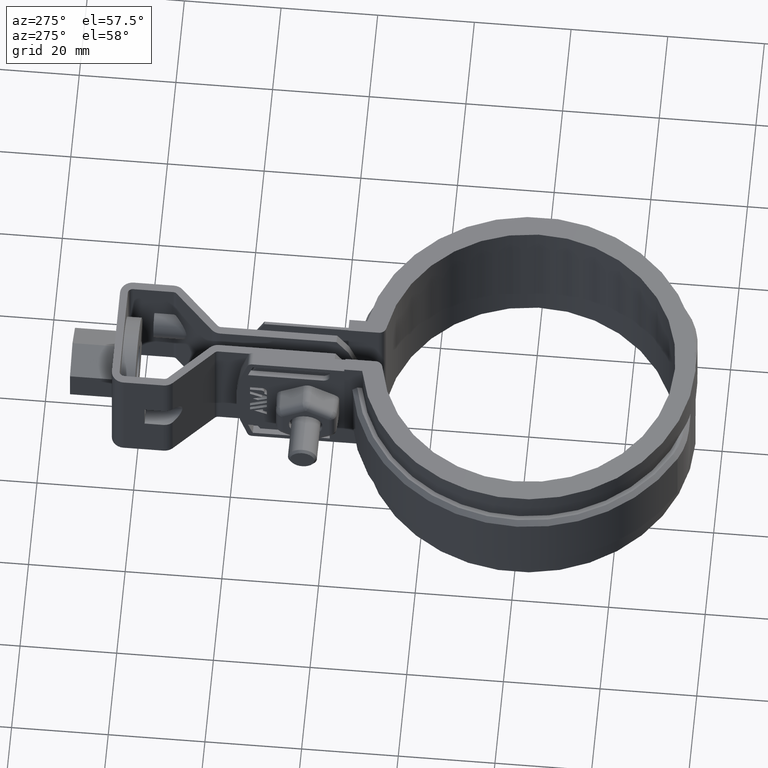
[diagram: clean part render]
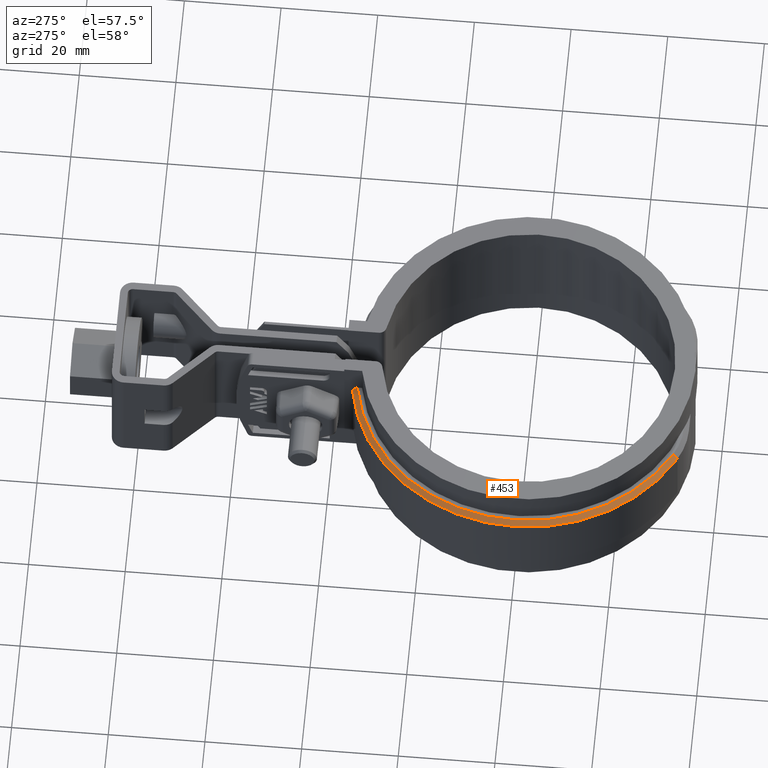
[diagram: same view with one face highlighted and labeled with its STEP entity id]
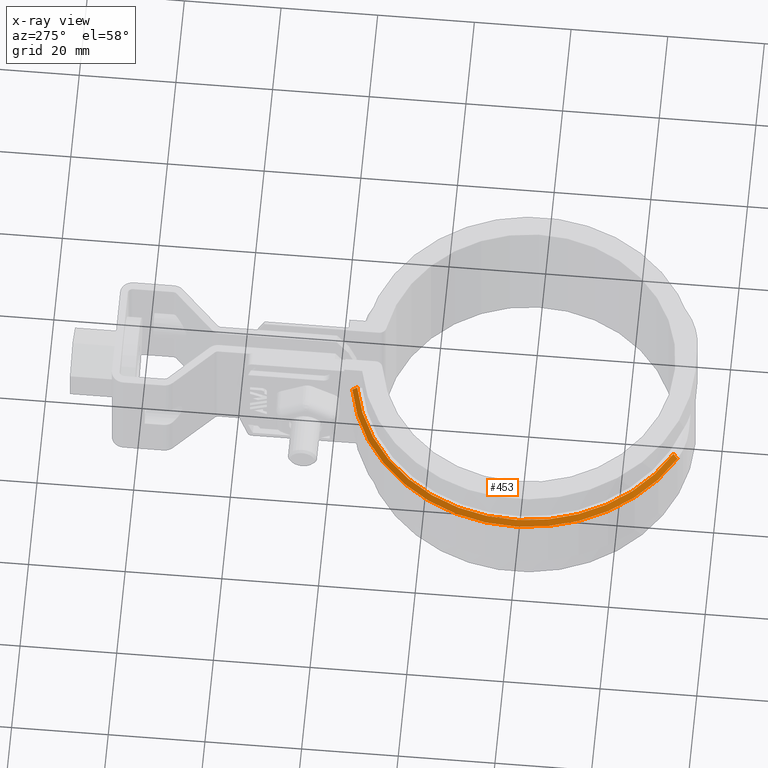
[diagram: x-ray of the same camera — body ghosted, the highlighted face saturated]
A machine part, auxiliary view. The second image highlights one B-rep face of the part: STEP entity #453.
The next image is the same camera in x-ray: the body ghosted, the highlighted face saturated — about 0% of this face is hidden behind the body in this view.
In plain terms, the highlighted conical surface has half-angle 45 deg.
Its self-contained STEP definition (entity closure, byte-faithful):
#453 = ADVANCED_FACE( '', ( #897 ), #898, .T. );
#897 = FACE_OUTER_BOUND( '', #1974, .T. );
#898 = CONICAL_SURFACE( '', #1975, 35.4950000000000, 0.785398163397449 );
#1974 = EDGE_LOOP( '', ( #4526, #4527, #4528, #4529 ) );
#1975 = AXIS2_PLACEMENT_3D( '', #4530, #4531, #4532 );
#4526 = ORIENTED_EDGE( '', *, *, #7036, .F. );
#4527 = ORIENTED_EDGE( '', *, *, #7106, .F. );
#4528 = ORIENTED_EDGE( '', *, *, #7107, .F. );
#4529 = ORIENTED_EDGE( '', *, *, #7108, .F. );
#4530 = CARTESIAN_POINT( '', ( -8.67361737988404E-016, -6.93889390390723E-015, -5.00000000000000 ) );
#4531 = DIRECTION( '', ( 0.000000000000000, 0.000000000000000, -1.00000000000000 ) );
#4532 = DIRECTION( '', ( -1.00000000000000, 0.000000000000000, 0.000000000000000 ) );
#7036 = EDGE_CURVE( '', #8138, #8140, #8141, .F. );
#7106 = EDGE_CURVE( '', #8247, #8138, #8248, .T. );
#7107 = EDGE_CURVE( '', #8249, #8247, #8250, .T. );
#7108 = EDGE_CURVE( '', #8140, #8249, #8251, .F. );
#8138 = VERTEX_POINT( '', #11339 );
#8140 = VERTEX_POINT( '', #11342 );
#8141 = B_SPLINE_CURVE_WITH_KNOTS( '', 3, ( #11343, #11344, #11345, #11346 ), .UNSPECIFIED., .F., .F., ( 4, 4 ), ( 707.149335344688, 707.150762261654 ), .UNSPECIFIED. );
#8247 = VERTEX_POINT( '', #11818 );
#8248 = CIRCLE( '', #11819, 36.4950000000000 );
#8249 = VERTEX_POINT( '', #11820 );
#8250 = LINE( '', #11821, #11822 );
#8251 = CIRCLE( '', #11823, 35.4950000000000 );
#11339 = CARTESIAN_POINT( '', ( -6.09999999999997, 35.9815928635740, -6.00000000000000 ) );
#11342 = CARTESIAN_POINT( '', ( -6.09999999999997, 34.9669132895656, -5.00000000000000 ) );
#11343 = CARTESIAN_POINT( '', ( -6.09999999999997, 34.9669132895317, -4.99999999996657 ) );
#11344 = CARTESIAN_POINT( '', ( -6.09999999999997, 35.3052092611743, -5.33326287943232 ) );
#11345 = CARTESIAN_POINT( '', ( -6.09999999999997, 35.6434338555985, -5.66659817103372 ) );
#11346 = CARTESIAN_POINT( '', ( -6.09999999999997, 35.9815928635936, -6.00000000001932 ) );
#11818 = CARTESIAN_POINT( '', ( -17.0660060463684, -32.2588974180042, -5.99999999999999 ) );
#11819 = AXIS2_PLACEMENT_3D( '', #13741, #13742, #13743 );
#11820 = CARTESIAN_POINT( '', ( -16.5983801785408, -31.3749709234706, -5.00000000000000 ) );
#11821 = CARTESIAN_POINT( '', ( -16.5983801785408, -31.3749709234706, -5.00000000000000 ) );
#11822 = VECTOR( '', #13744, 1000.00000000000 );
#11823 = AXIS2_PLACEMENT_3D( '', #13745, #13746, #13747 );
#13741 = CARTESIAN_POINT( '', ( -8.67361737988404E-016, -6.93889390390723E-015, -6.00000000000000 ) );
#13742 = DIRECTION( '', ( 0.000000000000000, 0.000000000000000, -1.00000000000000 ) );
#13743 = DIRECTION( '', ( -1.00000000000000, 0.000000000000000, 0.000000000000000 ) );
#13744 = DIRECTION( '', ( -0.330661422199143, -0.625030418355173, -0.707106781186546 ) );
#13745 = CARTESIAN_POINT( '', ( -8.67361737988404E-016, -6.93889390390723E-015, -5.00000000000000 ) );
#13746 = DIRECTION( '', ( 0.000000000000000, 0.000000000000000, -1.00000000000000 ) );
#13747 = DIRECTION( '', ( -1.00000000000000, 0.000000000000000, 0.000000000000000 ) );